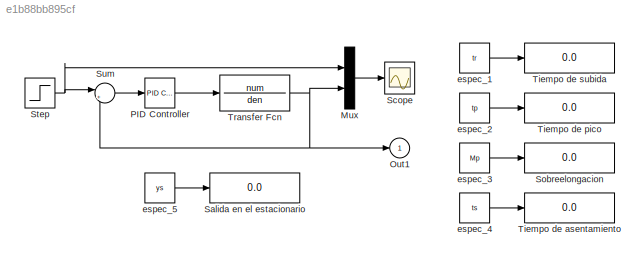
MODEL mdl_e1b88bb895cf
KIND model
CONFIG AbsTol = auto
CONFIG EnableMultiTasking = on
CONFIG FixedStep = auto
CONFIG MaxStep = auto
CONFIG MinStep = auto
CONFIG RelTol = 1e-3
CONFIG SampleTimeConstraint = Unconstrained
CONFIG SolverName = ode45
CONFIG StartTime = 0.0
CONFIG StopTime = 100
BLOCK [Mux] Mux
  DisplayOption = bar
  Inputs = 2
BLOCK [Outport] Out1
BLOCK [Reference] PID Controller  REF=simulink_need_slupdate/PID Controller
  SourceBlock = simulink_need_slupdate/PID Controller
  SourceType = PID Controller
BLOCK [Display] Salida en el estacionario
  Decimation = 1
BLOCK [Scope] Scope
  Floating = off
  NumInputPorts = 1
  ScopeSpecificationString = Simulink.scopes.TimeScopeBlockCfg('CurrentConfiguration', extmgr.ConfigurationSet(extmgr.Configuration('Core','General UI',true),extmgr.Configuration('Core','Source UI',true),extmgr.Configuration('Sources','WiredSimulink',true,'DataLoggingSaveFormat','StructureWithTime','DataLoggingDecimation','1','DataLoggingDecimateData',true),extmgr.Configuration('Visuals','Time Domain',true,'SerializedDisplays...<+1737ch>
BLOCK [Display] Sobreelongacion
  Decimation = 1
BLOCK [Step] Step
  SampleTime = 0.01
  Time = 0
BLOCK [Sum] Sum
  InputSameDT = on
  Inputs = |+-
  OutDataTypeStr = Inherit: Same as first input
  SaturateOnIntegerOverflow = on
BLOCK [Display] Tiempo de asentamiento
  Decimation = 1
BLOCK [Display] Tiempo de pico
  Decimation = 1
BLOCK [Display] Tiempo de subida
  Decimation = 1
BLOCK [TransferFcn] Transfer Fcn
  Denominator = den
  Numerator = num
BLOCK [Constant] espec_1
  Value = tr
BLOCK [Constant] espec_2
  Value = tp
BLOCK [Constant] espec_3
  Value = Mp
BLOCK [Constant] espec_4
  Value = ts
BLOCK [Constant] espec_5
  Value = ys
LINE Mux:1 -> Scope:1
LINE PID Controller:1 -> Transfer Fcn:1
NET Step:1 -> Mux:1, Sum:1
LINE Sum:1 -> PID Controller:1
NET Transfer Fcn:1 -> Mux:2, Out1:1, Sum:2
LINE espec_1:1 -> Tiempo de subida:1
LINE espec_2:1 -> Tiempo de pico:1
LINE espec_3:1 -> Sobreelongacion:1
LINE espec_4:1 -> Tiempo de asentamiento:1
LINE espec_5:1 -> Salida en el estacionario:1
note: NET lines group one-source signal fan-out (src -> all destinations, sorted); 1:1 wires keep LINE
